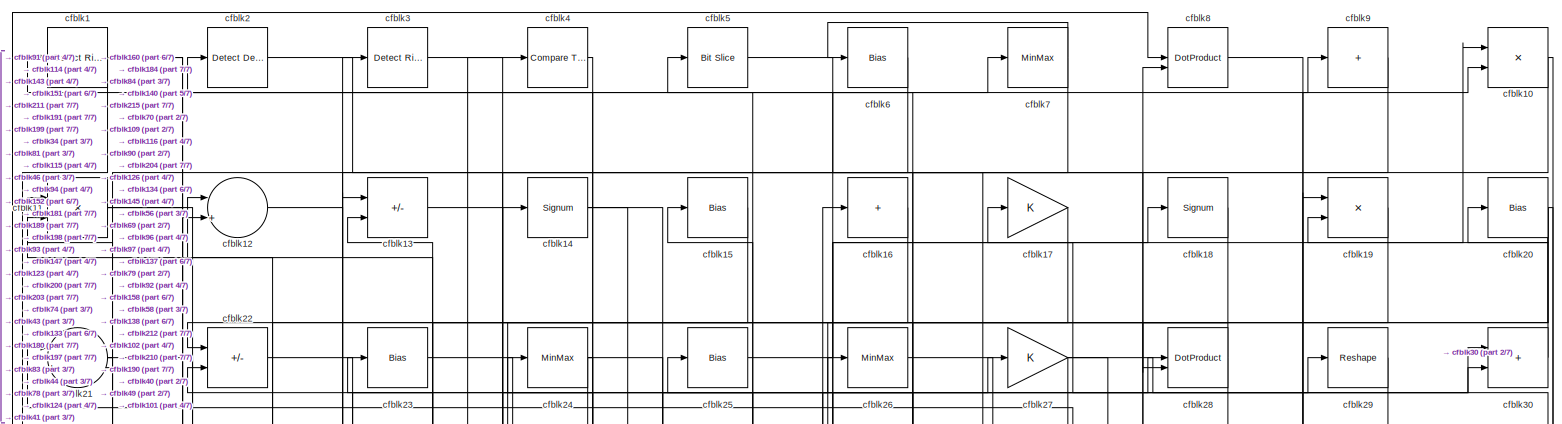
[diagram: root canvas - part 1/7, full width, top band]
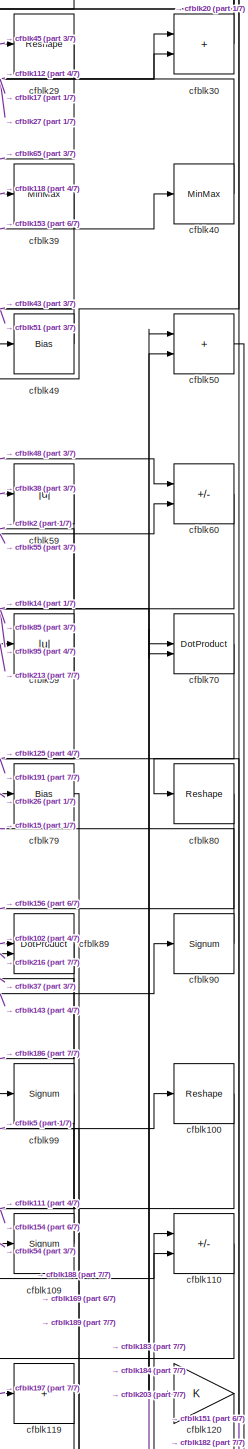
[diagram: root canvas - part 2/7, top right region]
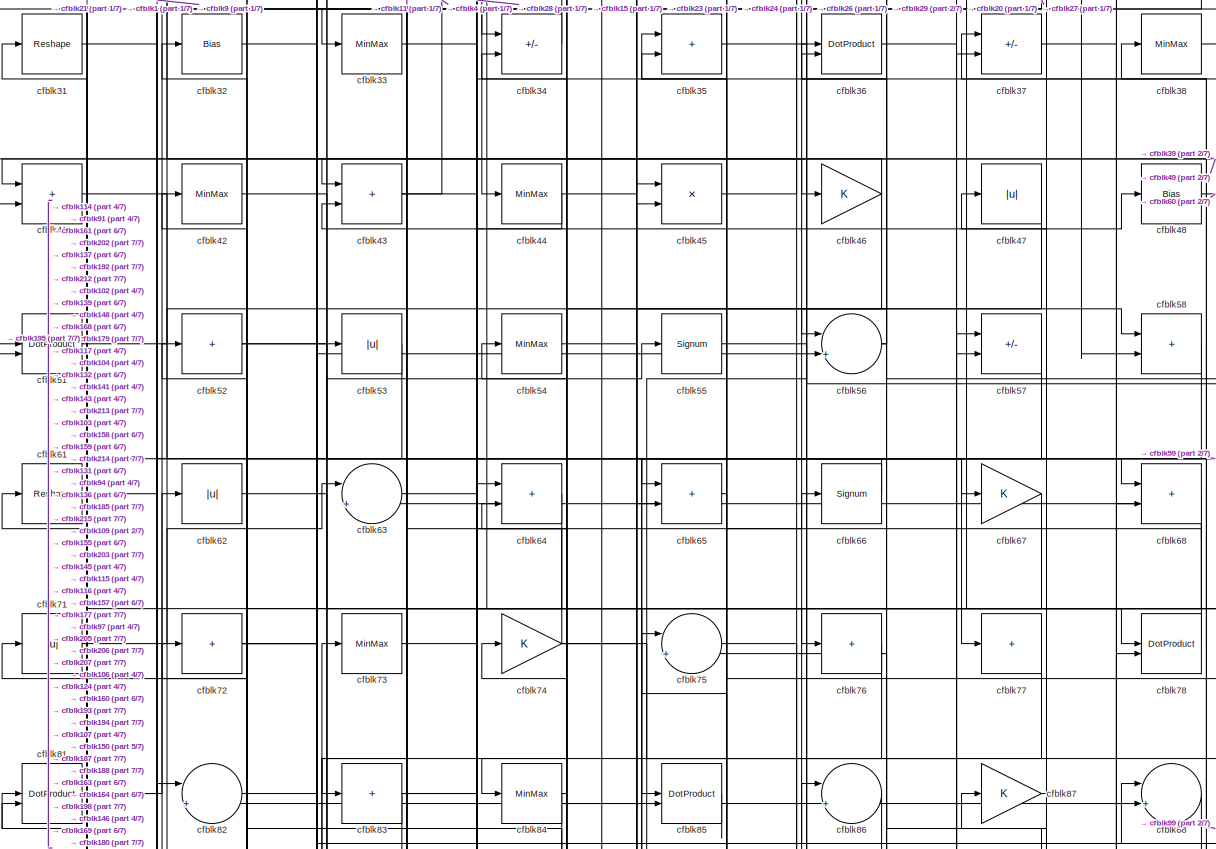
[diagram: root canvas - part 3/7, full width, top band]
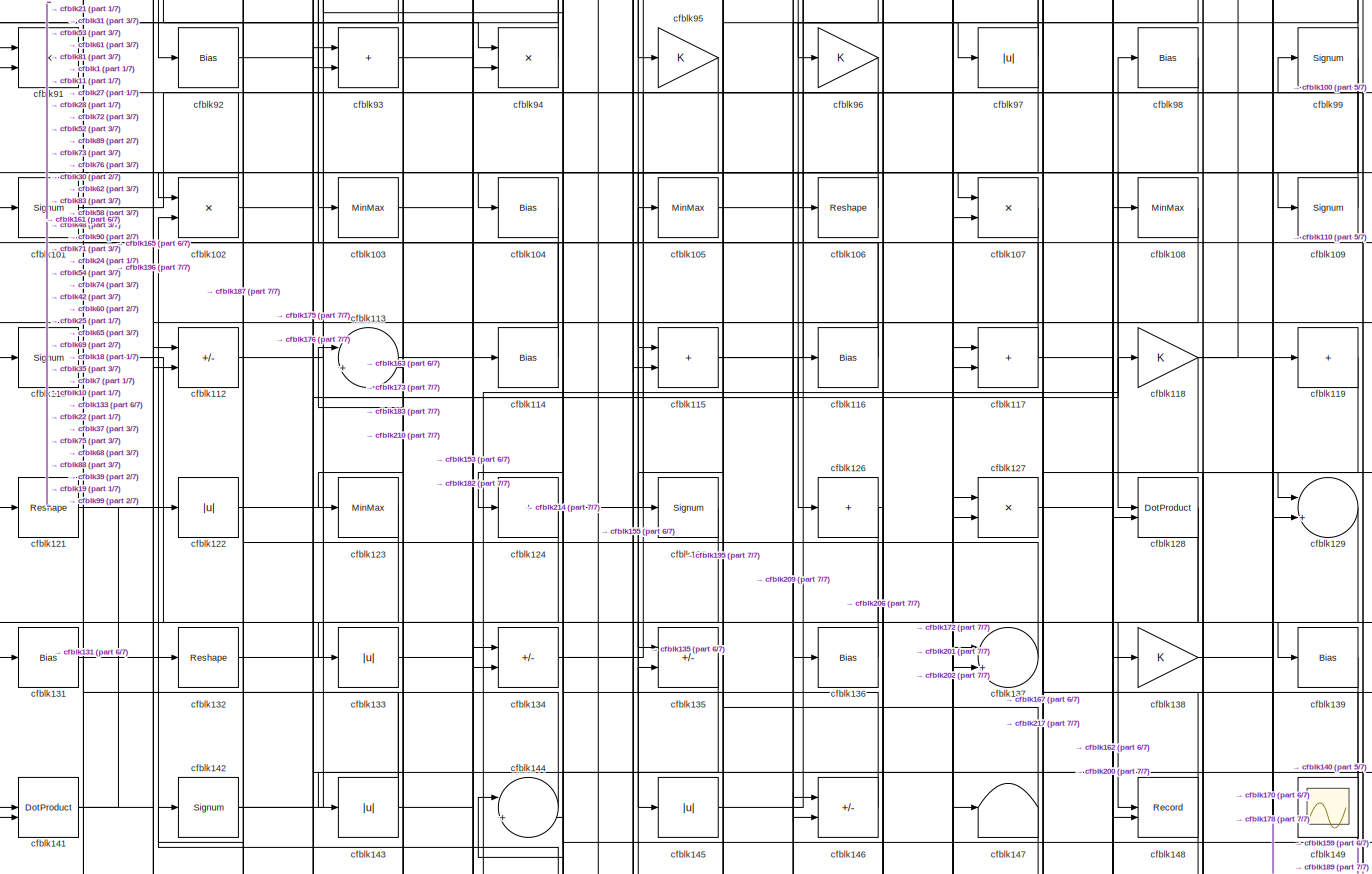
[diagram: root canvas - part 4/7, full width, middle band]
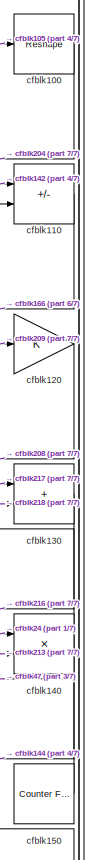
[diagram: root canvas - part 5/7, middle right region]
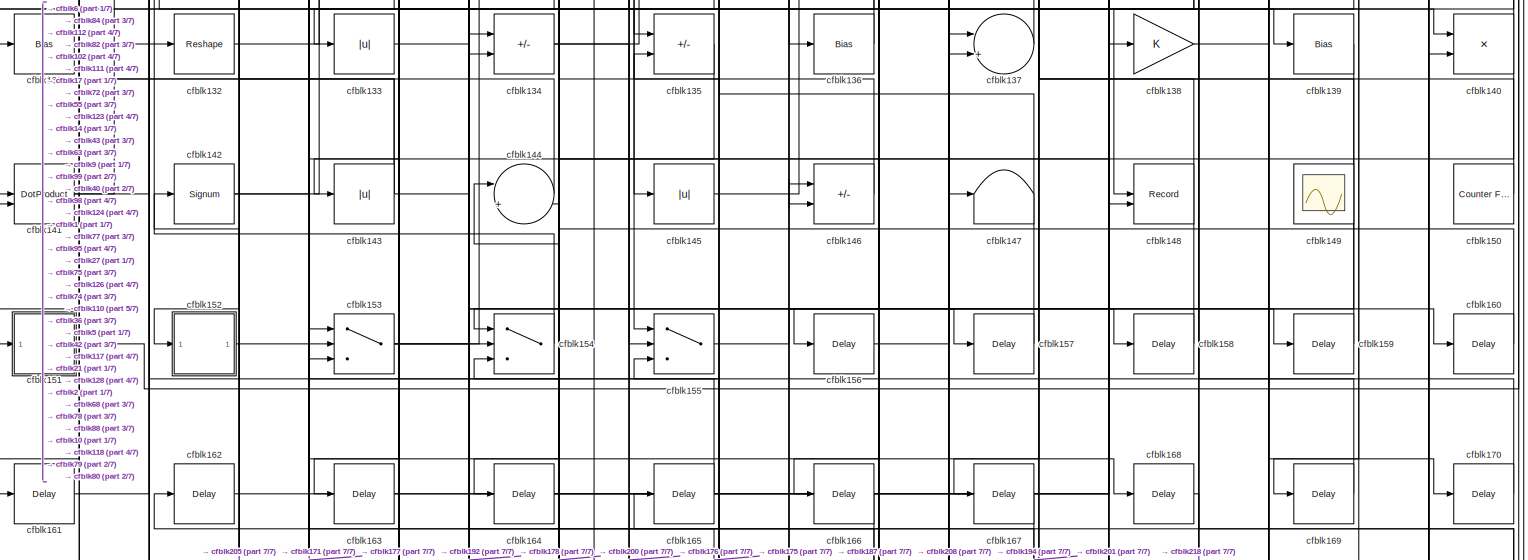
[diagram: root canvas - part 6/7, full width, bottom band]
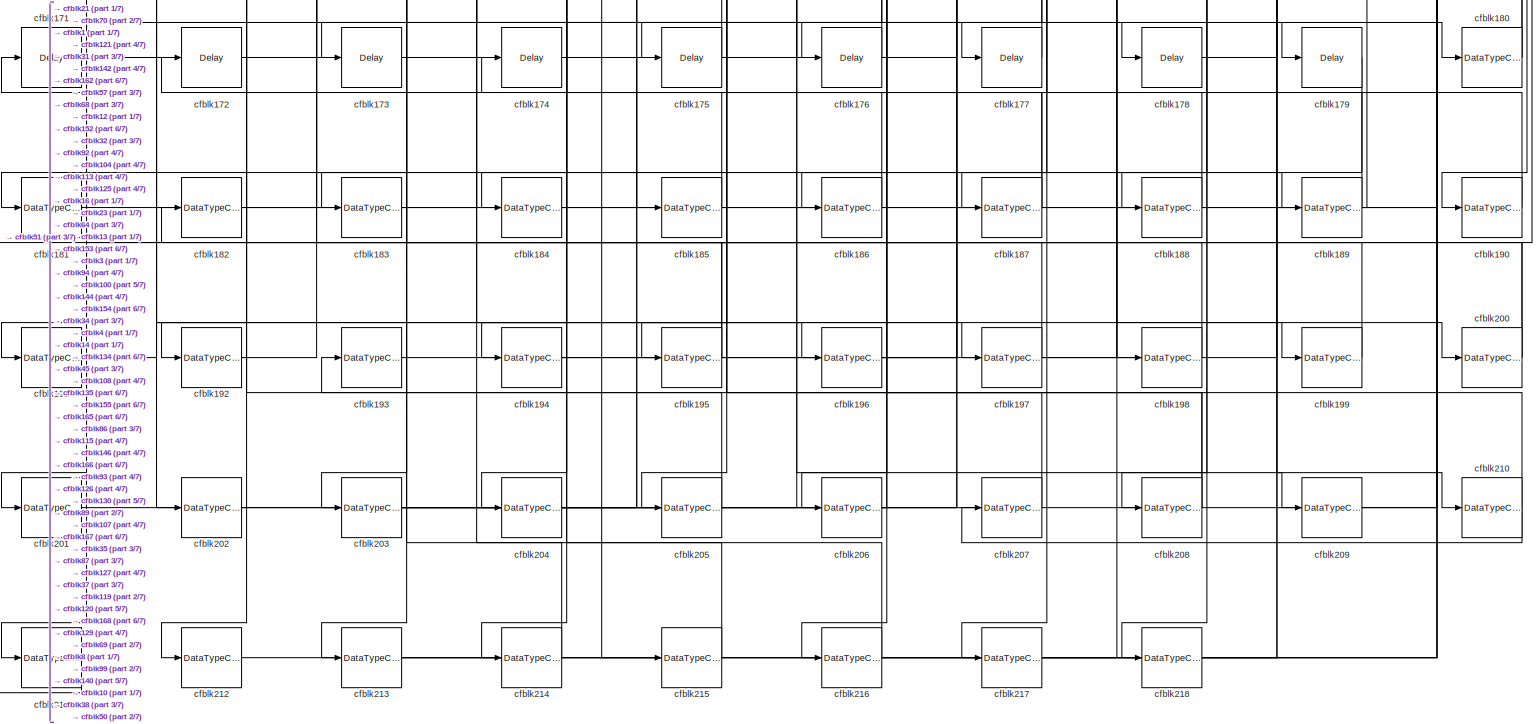
[diagram: root canvas - part 7/7, full width, bottom band]
MODEL slx_f701f7d181de
KIND model
CONFIG AbsTol = auto
CONFIG EnableMultiTasking = off
CONFIG FixedStep = auto
CONFIG MaxStep = auto
CONFIG MinStep = auto
CONFIG RelTol = 1e-3
CONFIG SampleTimeConstraint = Unconstrained
CONFIG SolverName = VariableStepAuto
CONFIG StartTime = 0.0
CONFIG StopTime = 10.0
BLOCK [Reference] cfblk1  REF=hdlsllib/Logic and Bit
Operations/Detect Rise
Positive
  SourceBlock = hdlsllib/Logic and Bit\nOperations/Detect Rise\nPositive
  SourceType = Detect Rise Positive
BLOCK [Product] cfblk10
  Inputs = */
  RndMeth = Zero
  SaturateOnIntegerOverflow = on
BLOCK [Reshape] cfblk100
BLOCK [Signum] cfblk101
BLOCK [Product] cfblk102
  Inputs = */
  RndMeth = Zero
  SaturateOnIntegerOverflow = on
BLOCK [MinMax] cfblk103
BLOCK [Bias] cfblk104
  Bias = 0.0
  SaturateOnIntegerOverflow = off
BLOCK [MinMax] cfblk105
BLOCK [Reshape] cfblk106
BLOCK [Product] cfblk107
  Inputs = */
  RndMeth = Zero
  SaturateOnIntegerOverflow = on
BLOCK [MinMax] cfblk108
BLOCK [Signum] cfblk109
BLOCK [Product] cfblk11
  Inputs = */
  RndMeth = Zero
  SaturateOnIntegerOverflow = on
BLOCK [Sum] cfblk110
  IconShape = rectangular
  Inputs = +-
BLOCK [Signum] cfblk111
BLOCK [Sum] cfblk112
  IconShape = rectangular
  Inputs = +-
BLOCK [Sum] cfblk113
  Inputs = |++
BLOCK [Bias] cfblk114
  Bias = 0.0
  SaturateOnIntegerOverflow = off
BLOCK [Sum] cfblk115
  IconShape = rectangular
BLOCK [Bias] cfblk116
  Bias = 0.0
  SaturateOnIntegerOverflow = off
BLOCK [Sum] cfblk117
  IconShape = rectangular
BLOCK [Gain] cfblk118
BLOCK [Sum] cfblk119
  IconShape = rectangular
  Inputs = +
BLOCK [Sum] cfblk12
  Inputs = |++
BLOCK [Gain] cfblk120
BLOCK [Reshape] cfblk121
BLOCK [Abs] cfblk122
  SaturateOnIntegerOverflow = off
BLOCK [MinMax] cfblk123
BLOCK [Sum] cfblk124
  IconShape = rectangular
  Inputs = +
BLOCK [Signum] cfblk125
BLOCK [Sum] cfblk126
  IconShape = rectangular
  Inputs = +
BLOCK [Product] cfblk127
  Inputs = */
  RndMeth = Zero
  SaturateOnIntegerOverflow = on
BLOCK [DotProduct] cfblk128
  OutDataTypeStr = Inherit: Inherit via internal rule
BLOCK [Sum] cfblk129
  Inputs = |++
BLOCK [Sum] cfblk13
  IconShape = rectangular
  Inputs = +-
BLOCK [Sum] cfblk130
  IconShape = rectangular
BLOCK [Bias] cfblk131
  Bias = 0.0
  SaturateOnIntegerOverflow = off
BLOCK [Reshape] cfblk132
BLOCK [Abs] cfblk133
  SaturateOnIntegerOverflow = off
BLOCK [Sum] cfblk134
  IconShape = rectangular
  Inputs = +-
BLOCK [Sum] cfblk135
  IconShape = rectangular
  Inputs = +-
BLOCK [Bias] cfblk136
  Bias = 0.0
  SaturateOnIntegerOverflow = off
BLOCK [Sum] cfblk137
  Inputs = |++
BLOCK [Gain] cfblk138
BLOCK [Bias] cfblk139
  Bias = 0.0
  SaturateOnIntegerOverflow = off
BLOCK [Signum] cfblk14
BLOCK [Product] cfblk140
  Inputs = */
  RndMeth = Zero
  SaturateOnIntegerOverflow = on
BLOCK [DotProduct] cfblk141
  OutDataTypeStr = Inherit: Inherit via internal rule
BLOCK [Signum] cfblk142
BLOCK [Abs] cfblk143
  SaturateOnIntegerOverflow = off
BLOCK [Sum] cfblk144
  Inputs = |++
BLOCK [Abs] cfblk145
  SaturateOnIntegerOverflow = off
BLOCK [Sum] cfblk146
  IconShape = rectangular
  Inputs = +-
BLOCK [Terminator] cfblk147
BLOCK [Record] cfblk148
  CompatibilityTag = XY
  FileSettingsInternal = {"entries":[{"content":{"excelSettings":{"content":{},"type":"Streamout.ExcelSettings"}},"type":"Streamout.FileSettingStorage","uuid":""}],"packageUris":["http:\/\/schema.mathworks.com\/mf0\/streamout_blocks\/R2020a"],"version":"1.0"}
  Layout = [1 1]
  SignalsInternal = {"entries":[{"content":{"signals":[{"content":{"blockPath":[],"dimensions":[1],"domain":"","lineColor":"#a2142f","plots":[1],"port":1,"signalID":4786,"signalName":"XY Graph:1"},"type":"RecordBlkView.Signal","uuid":""},{"content":{"blockPath":[],"dimensions":[1],"domain":"","lineColor":"#139fff","plots":[1],"port":2,"signalID":4789,"signalName":"XY Graph:2"},"type":"RecordBlkView.Signal","uuid":""}...<+146ch>
  VisualizationBindings = {"xyplotplugin":{"info":[{"series":[{"bindingParametersList":[{"parameter":"X-Axis","signalID":4786,"signalName":"XY Graph:1"},{"parameter":"Y-Axis","signalID":4789,"signalName":"XY Graph:2"}],"seriesID":2000}],"subplotID":1}]}}
  st = -1
BLOCK [Scope] cfblk149
  Floating = on
  NumInputPorts = 1
  ScopeSpecificationString = Simulink.scopes.TimeScopeBlockCfg('CurrentConfiguration', extmgr.ConfigurationSet(extmgr.Configuration('Core','General UI',true,'FigureColor',[0.156862745098039 0.156862745098039 0.156862745098039]),extmgr.Configuration('Core','Source UI',true),extmgr.Configuration('Sources','WiredSimulink',true,'DataLoggingVariableName','ScopeData1','DataLoggingSaveFormat','StructureWithTime','DataLoggingLimitDat...<+2713ch>
BLOCK [Bias] cfblk15
  Bias = 0.0
  SaturateOnIntegerOverflow = off
BLOCK [Reference] cfblk150  REF=hdlsllib/Sources/Counter
Free-Running
  SourceBlock = hdlsllib/Sources/Counter\nFree-Running
  SourceType = Counter Free-Running
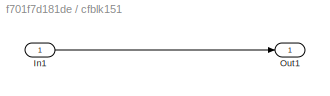
BLOCK [SubSystem] cfblk151
  LibrarySourceBlock = hdlsllib/Ports &\nSubsystems/Subsystem
BLOCK [Inport] cfblk151/In1
BLOCK [Outport] cfblk151/Out1
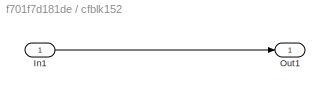
BLOCK [SubSystem] cfblk152
  LibrarySourceBlock = hdlsllib/Ports &\nSubsystems/Subsystem
BLOCK [Inport] cfblk152/In1
BLOCK [Outport] cfblk152/Out1
BLOCK [Switch] cfblk153
  InputSameDT = off
  SaturateOnIntegerOverflow = off
BLOCK [Switch] cfblk154
  InputSameDT = off
  SaturateOnIntegerOverflow = off
BLOCK [Switch] cfblk155
  InputSameDT = off
  SaturateOnIntegerOverflow = off
BLOCK [Delay] cfblk156
  InputPortMap = u0
  SampleTime = 1
BLOCK [Delay] cfblk157
  InputPortMap = u0
  SampleTime = 1
BLOCK [Delay] cfblk158
  InputPortMap = u0
  SampleTime = 1
BLOCK [Delay] cfblk159
  InputPortMap = u0
  SampleTime = 1
BLOCK [Sum] cfblk16
  IconShape = rectangular
  Inputs = +
BLOCK [Delay] cfblk160
  InputPortMap = u0
  SampleTime = 1
BLOCK [Delay] cfblk161
  InputPortMap = u0
  SampleTime = 1
BLOCK [Delay] cfblk162
  InputPortMap = u0
  SampleTime = 1
BLOCK [Delay] cfblk163
  InputPortMap = u0
  SampleTime = 1
BLOCK [Delay] cfblk164
  InputPortMap = u0
  SampleTime = 1
BLOCK [Delay] cfblk165
  InputPortMap = u0
  SampleTime = 1
BLOCK [Delay] cfblk166
  InputPortMap = u0
  SampleTime = 1
BLOCK [Delay] cfblk167
  InputPortMap = u0
  SampleTime = 1
BLOCK [Delay] cfblk168
  InputPortMap = u0
  SampleTime = 1
BLOCK [Delay] cfblk169
  InputPortMap = u0
  SampleTime = 1
BLOCK [Gain] cfblk17
BLOCK [Delay] cfblk170
  InputPortMap = u0
  SampleTime = 1
BLOCK [Delay] cfblk171
  InputPortMap = u0
  SampleTime = 1
BLOCK [Delay] cfblk172
  InputPortMap = u0
  SampleTime = 1
BLOCK [Delay] cfblk173
  InputPortMap = u0
  SampleTime = 1
BLOCK [Delay] cfblk174
  InputPortMap = u0
  SampleTime = 1
BLOCK [Delay] cfblk175
  InputPortMap = u0
  SampleTime = 1
BLOCK [Delay] cfblk176
  InputPortMap = u0
  SampleTime = 1
BLOCK [Delay] cfblk177
  InputPortMap = u0
  SampleTime = 1
BLOCK [Delay] cfblk178
  InputPortMap = u0
  SampleTime = 1
BLOCK [Delay] cfblk179
  InputPortMap = u0
  SampleTime = 1
BLOCK [Signum] cfblk18
BLOCK [DataTypeConversion] cfblk180
  RndMeth = Floor
  SaturateOnIntegerOverflow = off
BLOCK [DataTypeConversion] cfblk181
  OutDataTypeStr = uint8
  RndMeth = Floor
  SaturateOnIntegerOverflow = off
BLOCK [DataTypeConversion] cfblk182
  OutDataTypeStr = uint8
  RndMeth = Floor
  SaturateOnIntegerOverflow = off
BLOCK [DataTypeConversion] cfblk183
  OutDataTypeStr = uint8
  RndMeth = Floor
  SaturateOnIntegerOverflow = off
BLOCK [DataTypeConversion] cfblk184
  OutDataTypeStr = uint8
  RndMeth = Floor
  SaturateOnIntegerOverflow = off
BLOCK [DataTypeConversion] cfblk185
  OutDataTypeStr = uint8
  RndMeth = Floor
  SaturateOnIntegerOverflow = off
BLOCK [DataTypeConversion] cfblk186
  OutDataTypeStr = uint8
  RndMeth = Floor
  SaturateOnIntegerOverflow = off
BLOCK [DataTypeConversion] cfblk187
  RndMeth = Floor
  SaturateOnIntegerOverflow = off
BLOCK [DataTypeConversion] cfblk188
  OutDataTypeStr = uint8
  RndMeth = Floor
  SaturateOnIntegerOverflow = off
BLOCK [DataTypeConversion] cfblk189
  RndMeth = Floor
  SaturateOnIntegerOverflow = off
BLOCK [Product] cfblk19
  Inputs = */
  RndMeth = Zero
  SaturateOnIntegerOverflow = on
BLOCK [DataTypeConversion] cfblk190
  OutDataTypeStr = uint8
  RndMeth = Floor
  SaturateOnIntegerOverflow = off
BLOCK [DataTypeConversion] cfblk191
  OutDataTypeStr = uint8
  RndMeth = Floor
  SaturateOnIntegerOverflow = off
BLOCK [DataTypeConversion] cfblk192
  OutDataTypeStr = uint8
  RndMeth = Floor
  SaturateOnIntegerOverflow = off
BLOCK [DataTypeConversion] cfblk193
  OutDataTypeStr = uint8
  RndMeth = Floor
  SaturateOnIntegerOverflow = off
BLOCK [DataTypeConversion] cfblk194
  OutDataTypeStr = uint8
  RndMeth = Floor
  SaturateOnIntegerOverflow = off
BLOCK [DataTypeConversion] cfblk195
  RndMeth = Floor
  SaturateOnIntegerOverflow = off
BLOCK [DataTypeConversion] cfblk196
  OutDataTypeStr = uint8
  RndMeth = Floor
  SaturateOnIntegerOverflow = off
BLOCK [DataTypeConversion] cfblk197
  RndMeth = Floor
  SaturateOnIntegerOverflow = off
BLOCK [DataTypeConversion] cfblk198
  OutDataTypeStr = uint8
  RndMeth = Floor
  SaturateOnIntegerOverflow = off
BLOCK [DataTypeConversion] cfblk199
  OutDataTypeStr = uint8
  RndMeth = Floor
  SaturateOnIntegerOverflow = off
BLOCK [Reference] cfblk2  REF=simulink/Logic and Bit
Operations/Detect
Decrease
  LibrarySourceBlock = hdlsllib/Logic and Bit\nOperations/Detect\nDecrease
  SourceBlock = simulink/Logic and Bit\nOperations/Detect\nDecrease
  SourceType = Detect Decrease
BLOCK [Bias] cfblk20
  Bias = 0.0
  SaturateOnIntegerOverflow = off
BLOCK [DataTypeConversion] cfblk200
  RndMeth = Floor
  SaturateOnIntegerOverflow = off
BLOCK [DataTypeConversion] cfblk201
  OutDataTypeStr = uint8
  RndMeth = Floor
  SaturateOnIntegerOverflow = off
BLOCK [DataTypeConversion] cfblk202
  OutDataTypeStr = uint8
  RndMeth = Floor
  SaturateOnIntegerOverflow = off
BLOCK [DataTypeConversion] cfblk203
  RndMeth = Floor
  SaturateOnIntegerOverflow = off
BLOCK [DataTypeConversion] cfblk204
  OutDataTypeStr = uint8
  RndMeth = Floor
  SaturateOnIntegerOverflow = off
BLOCK [DataTypeConversion] cfblk205
  OutDataTypeStr = uint8
  RndMeth = Floor
  SaturateOnIntegerOverflow = off
BLOCK [DataTypeConversion] cfblk206
  OutDataTypeStr = uint8
  RndMeth = Floor
  SaturateOnIntegerOverflow = off
BLOCK [DataTypeConversion] cfblk207
  OutDataTypeStr = uint8
  RndMeth = Floor
  SaturateOnIntegerOverflow = off
BLOCK [DataTypeConversion] cfblk208
  RndMeth = Floor
  SaturateOnIntegerOverflow = off
BLOCK [DataTypeConversion] cfblk209
  OutDataTypeStr = uint8
  RndMeth = Floor
  SaturateOnIntegerOverflow = off
BLOCK [Sum] cfblk21
  Inputs = |++
BLOCK [DataTypeConversion] cfblk210
  RndMeth = Floor
  SaturateOnIntegerOverflow = off
BLOCK [DataTypeConversion] cfblk211
  OutDataTypeStr = uint8
  RndMeth = Floor
  SaturateOnIntegerOverflow = off
BLOCK [DataTypeConversion] cfblk212
  OutDataTypeStr = uint8
  RndMeth = Floor
  SaturateOnIntegerOverflow = off
BLOCK [DataTypeConversion] cfblk213
  RndMeth = Floor
  SaturateOnIntegerOverflow = off
BLOCK [DataTypeConversion] cfblk214
  OutDataTypeStr = uint8
  RndMeth = Floor
  SaturateOnIntegerOverflow = off
BLOCK [DataTypeConversion] cfblk215
  OutDataTypeStr = uint8
  RndMeth = Floor
  SaturateOnIntegerOverflow = off
BLOCK [DataTypeConversion] cfblk216
  RndMeth = Floor
  SaturateOnIntegerOverflow = off
BLOCK [DataTypeConversion] cfblk217
  OutDataTypeStr = uint8
  RndMeth = Floor
  SaturateOnIntegerOverflow = off
BLOCK [DataTypeConversion] cfblk218
  OutDataTypeStr = uint8
  RndMeth = Floor
  SaturateOnIntegerOverflow = off
BLOCK [Sum] cfblk22
  IconShape = rectangular
  Inputs = +-
BLOCK [Bias] cfblk23
  Bias = 0.0
  SaturateOnIntegerOverflow = off
BLOCK [MinMax] cfblk24
BLOCK [Bias] cfblk25
  Bias = 0.0
  SaturateOnIntegerOverflow = off
BLOCK [MinMax] cfblk26
BLOCK [Gain] cfblk27
BLOCK [DotProduct] cfblk28
  OutDataTypeStr = Inherit: Inherit via internal rule
BLOCK [Reshape] cfblk29
BLOCK [Reference] cfblk3  REF=hdlsllib/Logic and Bit
Operations/Detect Rise
Positive
  SourceBlock = hdlsllib/Logic and Bit\nOperations/Detect Rise\nPositive
  SourceType = Detect Rise Positive
BLOCK [Sum] cfblk30
  IconShape = rectangular
BLOCK [Reshape] cfblk31
BLOCK [Bias] cfblk32
  Bias = 0.0
  SaturateOnIntegerOverflow = off
BLOCK [MinMax] cfblk33
BLOCK [Sum] cfblk34
  IconShape = rectangular
  Inputs = +-
BLOCK [Sum] cfblk35
  IconShape = rectangular
BLOCK [DotProduct] cfblk36
  OutDataTypeStr = Inherit: Inherit via internal rule
BLOCK [Sum] cfblk37
  IconShape = rectangular
  Inputs = +-
BLOCK [MinMax] cfblk38
BLOCK [MinMax] cfblk39
BLOCK [Reference] cfblk4  REF=hdlsllib/Logic and Bit
Operations/Compare
To Constant
  SourceBlock = hdlsllib/Logic and Bit\nOperations/Compare\nTo Constant
  SourceType = Compare To Constant
BLOCK [MinMax] cfblk40
BLOCK [Sum] cfblk41
  IconShape = rectangular
BLOCK [MinMax] cfblk42
BLOCK [Sum] cfblk43
  IconShape = rectangular
BLOCK [MinMax] cfblk44
BLOCK [Product] cfblk45
  Inputs = */
  RndMeth = Zero
  SaturateOnIntegerOverflow = on
BLOCK [Gain] cfblk46
BLOCK [Abs] cfblk47
  SaturateOnIntegerOverflow = off
BLOCK [Bias] cfblk48
  Bias = 0.0
  SaturateOnIntegerOverflow = off
BLOCK [Bias] cfblk49
  Bias = 0.0
  SaturateOnIntegerOverflow = off
BLOCK [Reference] cfblk5  REF=hdlsllib/Logic and Bit
Operations/Bit Slice
  SourceBlock = hdlsllib/Logic and Bit\nOperations/Bit Slice
  SourceType = Bit Slice
BLOCK [Sum] cfblk50
  IconShape = rectangular
BLOCK [DotProduct] cfblk51
  OutDataTypeStr = Inherit: Inherit via internal rule
BLOCK [Sum] cfblk52
  IconShape = rectangular
  Inputs = +
BLOCK [Abs] cfblk53
  SaturateOnIntegerOverflow = off
BLOCK [MinMax] cfblk54
BLOCK [Signum] cfblk55
BLOCK [Sum] cfblk56
  Inputs = |++
BLOCK [Sum] cfblk57
  IconShape = rectangular
  Inputs = +-
BLOCK [Sum] cfblk58
  IconShape = rectangular
BLOCK [Abs] cfblk59
  SaturateOnIntegerOverflow = off
BLOCK [Bias] cfblk6
  Bias = 0.0
  SaturateOnIntegerOverflow = off
BLOCK [Sum] cfblk60
  IconShape = rectangular
  Inputs = +-
BLOCK [Reshape] cfblk61
BLOCK [Abs] cfblk62
  SaturateOnIntegerOverflow = off
BLOCK [Sum] cfblk63
  Inputs = |++
BLOCK [Sum] cfblk64
  IconShape = rectangular
BLOCK [Sum] cfblk65
  IconShape = rectangular
BLOCK [Signum] cfblk66
BLOCK [Gain] cfblk67
BLOCK [Sum] cfblk68
  IconShape = rectangular
BLOCK [Abs] cfblk69
  SaturateOnIntegerOverflow = off
BLOCK [MinMax] cfblk7
BLOCK [DotProduct] cfblk70
  OutDataTypeStr = Inherit: Inherit via internal rule
BLOCK [Abs] cfblk71
  SaturateOnIntegerOverflow = off
BLOCK [Sum] cfblk72
  IconShape = rectangular
  Inputs = +
BLOCK [MinMax] cfblk73
BLOCK [Gain] cfblk74
BLOCK [Sum] cfblk75
  Inputs = |++
BLOCK [Sum] cfblk76
  IconShape = rectangular
  Inputs = +
BLOCK [Sum] cfblk77
  IconShape = rectangular
  Inputs = +
BLOCK [DotProduct] cfblk78
  OutDataTypeStr = Inherit: Inherit via internal rule
BLOCK [Bias] cfblk79
  Bias = 0.0
  SaturateOnIntegerOverflow = off
BLOCK [DotProduct] cfblk8
  OutDataTypeStr = Inherit: Inherit via internal rule
BLOCK [Reshape] cfblk80
BLOCK [DotProduct] cfblk81
  OutDataTypeStr = Inherit: Inherit via internal rule
BLOCK [Sum] cfblk82
  Inputs = |++
BLOCK [Sum] cfblk83
  IconShape = rectangular
  Inputs = +
BLOCK [MinMax] cfblk84
BLOCK [DotProduct] cfblk85
  OutDataTypeStr = Inherit: Inherit via internal rule
BLOCK [Sum] cfblk86
  Inputs = |++
BLOCK [Gain] cfblk87
BLOCK [Sum] cfblk88
  Inputs = |++
BLOCK [DotProduct] cfblk89
  OutDataTypeStr = Inherit: Inherit via internal rule
BLOCK [Sum] cfblk9
  IconShape = rectangular
  Inputs = +
BLOCK [Signum] cfblk90
BLOCK [Product] cfblk91
  Inputs = */
  RndMeth = Zero
  SaturateOnIntegerOverflow = on
BLOCK [Bias] cfblk92
  Bias = 0.0
  SaturateOnIntegerOverflow = off
BLOCK [Sum] cfblk93
  IconShape = rectangular
BLOCK [Product] cfblk94
  Inputs = */
  RndMeth = Zero
  SaturateOnIntegerOverflow = on
BLOCK [Gain] cfblk95
BLOCK [Gain] cfblk96
BLOCK [Abs] cfblk97
  SaturateOnIntegerOverflow = off
BLOCK [Bias] cfblk98
  Bias = 0.0
  SaturateOnIntegerOverflow = off
BLOCK [Signum] cfblk99
LINE cfblk100:1 -> cfblk204:1
LINE cfblk101:1 -> cfblk19:1
NET cfblk102:1 -> cfblk61:1, cfblk89:1
LINE cfblk103:1 -> cfblk48:1
LINE cfblk104:1 -> cfblk183:1
LINE cfblk105:1 -> cfblk100:1
LINE cfblk106:1 -> cfblk52:1
LINE cfblk107:1 -> cfblk214:1
LINE cfblk108:1 -> cfblk195:1
LINE cfblk109:1 -> cfblk5:1
NET cfblk10:1 -> cfblk190:1, cfblk96:1
LINE cfblk110:1 -> cfblk166:1
LINE cfblk111:1 -> cfblk135:1
LINE cfblk112:1 -> cfblk30:1
LINE cfblk113:1 -> cfblk105:1
NET cfblk114:1 -> cfblk21:2, cfblk81:1
NET cfblk115:1 -> cfblk18:1, cfblk209:1
NET cfblk116:1 -> cfblk25:1, cfblk81:2
NET cfblk117:1 -> cfblk129:1, cfblk73:1
NET cfblk118:1 -> cfblk167:1, cfblk170:1, cfblk39:1
LINE cfblk119:1 -> cfblk188:1
NET cfblk11:1 -> cfblk115:2, cfblk94:1
LINE cfblk120:1 -> cfblk208:1
LINE cfblk121:1 -> cfblk196:1
LINE cfblk122:1 -> cfblk116:1
LINE cfblk123:1 -> cfblk161:1
NET cfblk124:1 -> cfblk133:1, cfblk37:2
LINE cfblk125:1 -> cfblk173:1
NET cfblk126:1 -> cfblk163:1, cfblk206:1
LINE cfblk127:1 -> cfblk200:1
NET cfblk128:1 -> cfblk141:1, cfblk148:1
LINE cfblk129:1 -> cfblk217:1
LINE cfblk12:1 -> cfblk189:1
LINE cfblk130:1 -> cfblk216:1
LINE cfblk131:1 -> cfblk102:2
LINE cfblk132:1 -> cfblk55:1
LINE cfblk133:1 -> cfblk14:1
NET cfblk134:1 -> cfblk176:1, cfblk27:1
LINE cfblk135:1 -> cfblk164:1
LINE cfblk136:1 -> cfblk74:1
LINE cfblk137:1 -> cfblk42:1
LINE cfblk138:1 -> cfblk10:2
LINE cfblk139:1 -> cfblk154:1
LINE cfblk13:1 -> cfblk197:1
NET cfblk140:1 -> cfblk110:2, cfblk144:2
NET cfblk141:1 -> cfblk112:2, cfblk122:1
NET cfblk142:1 -> cfblk110:1, cfblk118:1
NET cfblk143:1 -> cfblk11:1, cfblk72:1, cfblk90:1
LINE cfblk144:1 -> cfblk101:1
LINE cfblk145:1 -> cfblk7:1
LINE cfblk146:1 -> cfblk54:1
NET cfblk14:1 -> cfblk215:1, cfblk70:2
LINE cfblk150:1 -> cfblk47:1
LINE cfblk151/In1:1 -> cfblk151/Out1:1
LINE cfblk151:1 -> cfblk80:1
LINE cfblk152/In1:1 -> cfblk152/Out1:1
LINE cfblk152:1 -> cfblk177:1
NET cfblk153:1 -> cfblk178:1, cfblk40:1, cfblk98:1
LINE cfblk154:1 -> cfblk132:1
LINE cfblk155:1 -> cfblk157:1
LINE cfblk156:1 -> cfblk137:1
LINE cfblk157:1 -> cfblk75:1
LINE cfblk158:1 -> cfblk21:1
LINE cfblk159:1 -> cfblk117:1
LINE cfblk15:1 -> cfblk44:1
LINE cfblk160:1 -> cfblk1:1
LINE cfblk161:1 -> cfblk82:1
LINE cfblk162:1 -> cfblk128:2
LINE cfblk163:1 -> cfblk68:2
LINE cfblk164:1 -> cfblk78:2
LINE cfblk165:1 -> cfblk112:1
LINE cfblk166:1 -> cfblk194:1
LINE cfblk167:1 -> cfblk201:1
LINE cfblk168:1 -> cfblk218:1
LINE cfblk169:1 -> cfblk88:1
LINE cfblk16:1 -> cfblk203:1
LINE cfblk170:1 -> cfblk153:2
LINE cfblk171:1 -> cfblk153:3
LINE cfblk172:1 -> cfblk107:2
LINE cfblk173:1 -> cfblk146:1
LINE cfblk174:1 -> cfblk185:1
LINE cfblk175:1 -> cfblk134:1
LINE cfblk176:1 -> cfblk93:1
LINE cfblk177:1 -> cfblk35:2
LINE cfblk178:1 -> cfblk129:2
LINE cfblk179:1 -> cfblk181:1
LINE cfblk17:1 -> cfblk152:1
NET cfblk180:1 -> cfblk32:1, cfblk38:1
LINE cfblk181:1 -> cfblk3:1
LINE cfblk182:1 -> cfblk94:2
LINE cfblk183:1 -> cfblk50:1
LINE cfblk184:1 -> cfblk50:2
LINE cfblk185:1 -> cfblk34:2
LINE cfblk186:1 -> cfblk174:1
NET cfblk187:1 -> cfblk142:1, cfblk165:1
LINE cfblk188:1 -> cfblk87:1
NET cfblk189:1 -> cfblk144:1, cfblk99:1
LINE cfblk18:1 -> cfblk126:1
LINE cfblk190:1 -> cfblk12:1
LINE cfblk191:1 -> cfblk12:2
LINE cfblk192:1 -> cfblk153:1
LINE cfblk193:1 -> cfblk57:1
LINE cfblk194:1 -> cfblk57:2
NET cfblk195:1 -> cfblk172:1, cfblk51:1
LINE cfblk196:1 -> cfblk108:1
NET cfblk197:1 -> cfblk119:1, cfblk171:1
LINE cfblk198:1 -> cfblk13:1
LINE cfblk199:1 -> cfblk13:2
LINE cfblk19:1 -> cfblk123:1
NET cfblk1:1 -> cfblk199:1, cfblk34:1, cfblk91:2
NET cfblk200:1 -> cfblk154:3, cfblk23:1
LINE cfblk201:1 -> cfblk127:1
LINE cfblk202:1 -> cfblk127:2
NET cfblk203:1 -> cfblk45:1, cfblk45:2, cfblk70:1
LINE cfblk204:1 -> cfblk16:1
LINE cfblk205:1 -> cfblk162:1
LINE cfblk206:1 -> cfblk86:1
LINE cfblk207:1 -> cfblk86:2
NET cfblk208:1 -> cfblk135:2, cfblk155:3
LINE cfblk209:1 -> cfblk120:1
NET cfblk20:1 -> cfblk19:2, cfblk28:2, cfblk49:1, cfblk56:1
NET cfblk210:1 -> cfblk113:1, cfblk207:1
LINE cfblk211:1 -> cfblk8:1
LINE cfblk212:1 -> cfblk8:2
NET cfblk213:1 -> cfblk140:2, cfblk69:1
LINE cfblk214:1 -> cfblk64:1
LINE cfblk215:1 -> cfblk64:2
NET cfblk216:1 -> cfblk193:1, cfblk89:2
LINE cfblk217:1 -> cfblk130:1
LINE cfblk218:1 -> cfblk130:2
NET cfblk21:1 -> cfblk211:1, cfblk46:1
LINE cfblk22:1 -> cfblk147:1
LINE cfblk23:1 -> cfblk78:1
NET cfblk24:1 -> cfblk124:1, cfblk140:1, cfblk41:2
LINE cfblk25:1 -> cfblk10:1
LINE cfblk26:1 -> cfblk79:1
NET cfblk27:1 -> cfblk30:2, cfblk58:2, cfblk92:1
NET cfblk28:1 -> cfblk102:1, cfblk22:1
LINE cfblk29:1 -> cfblk65:2
LINE cfblk2:1 -> cfblk138:1
LINE cfblk30:1 -> cfblk20:1
LINE cfblk31:1 -> cfblk202:1
LINE cfblk32:1 -> cfblk179:1
LINE cfblk33:1 -> cfblk88:2
LINE cfblk34:1 -> cfblk33:1
LINE cfblk35:1 -> cfblk97:1
LINE cfblk36:1 -> cfblk160:1
LINE cfblk37:1 -> cfblk198:1
LINE cfblk38:1 -> cfblk59:1
LINE cfblk39:1 -> cfblk51:2
LINE cfblk3:1 -> cfblk180:1
LINE cfblk40:1 -> cfblk17:1
LINE cfblk41:1 -> cfblk67:1
LINE cfblk42:1 -> cfblk145:1
NET cfblk43:1 -> cfblk158:1, cfblk4:1
NET cfblk44:1 -> cfblk26:1, cfblk43:2
LINE cfblk45:1 -> cfblk29:1
NET cfblk46:1 -> cfblk41:1, cfblk85:2
LINE cfblk47:1 -> cfblk84:1
LINE cfblk48:1 -> cfblk60:1
LINE cfblk49:1 -> cfblk43:1
LINE cfblk4:1 -> cfblk184:1
LINE cfblk50:1 -> cfblk182:1
LINE cfblk51:1 -> cfblk58:1
NET cfblk52:1 -> cfblk148:2, cfblk77:1
LINE cfblk53:1 -> cfblk91:1
LINE cfblk54:1 -> cfblk109:1
LINE cfblk55:1 -> cfblk60:2
NET cfblk56:1 -> cfblk36:1, cfblk36:2
LINE cfblk57:1 -> cfblk192:1
LINE cfblk58:1 -> cfblk143:1
LINE cfblk59:1 -> cfblk85:1
LINE cfblk5:1 -> cfblk137:2
LINE cfblk60:1 -> cfblk95:1
LINE cfblk61:1 -> cfblk68:1
LINE cfblk62:1 -> cfblk104:1
LINE cfblk63:1 -> cfblk159:1
LINE cfblk64:1 -> cfblk213:1
LINE cfblk65:1 -> cfblk115:1
LINE cfblk66:1 -> cfblk65:1
LINE cfblk67:1 -> cfblk83:1
NET cfblk68:1 -> cfblk107:1, cfblk212:1, cfblk63:2
NET cfblk69:1 -> cfblk125:1, cfblk2:1
LINE cfblk6:1 -> cfblk151:1
LINE cfblk70:1 -> cfblk191:1
LINE cfblk71:1 -> cfblk63:1
NET cfblk72:1 -> cfblk139:1, cfblk168:1, cfblk56:2
LINE cfblk73:1 -> cfblk76:1
NET cfblk74:1 -> cfblk106:1, cfblk117:2, cfblk11:2
LINE cfblk75:1 -> cfblk136:1
LINE cfblk76:1 -> cfblk103:1
LINE cfblk77:1 -> cfblk155:2
LINE cfblk78:1 -> cfblk35:1
LINE cfblk79:1 -> cfblk169:1
NET cfblk7:1 -> cfblk6:1, cfblk93:2
LINE cfblk80:1 -> cfblk156:1
NET cfblk81:1 -> cfblk62:1, cfblk9:1
LINE cfblk82:1 -> cfblk53:1
NET cfblk83:1 -> cfblk141:2, cfblk28:1, cfblk66:1
NET cfblk84:1 -> cfblk131:1, cfblk24:1
LINE cfblk85:1 -> cfblk82:2
LINE cfblk86:1 -> cfblk205:1
LINE cfblk87:1 -> cfblk187:1
LINE cfblk88:1 -> cfblk146:2
LINE cfblk89:1 -> cfblk186:1
LINE cfblk8:1 -> cfblk210:1
LINE cfblk90:1 -> cfblk15:1
LINE cfblk91:1 -> cfblk31:1
LINE cfblk92:1 -> cfblk175:1
LINE cfblk93:1 -> cfblk114:1
LINE cfblk94:1 -> cfblk71:1
LINE cfblk95:1 -> cfblk155:1
LINE cfblk96:1 -> cfblk121:1
NET cfblk97:1 -> cfblk113:2, cfblk22:2, cfblk75:2
LINE cfblk98:1 -> cfblk128:1
NET cfblk99:1 -> cfblk111:1, cfblk154:2, cfblk37:1
LINE cfblk9:1 -> cfblk134:2
note: NET lines group one-source signal fan-out (src -> all destinations, sorted); 1:1 wires keep LINE
